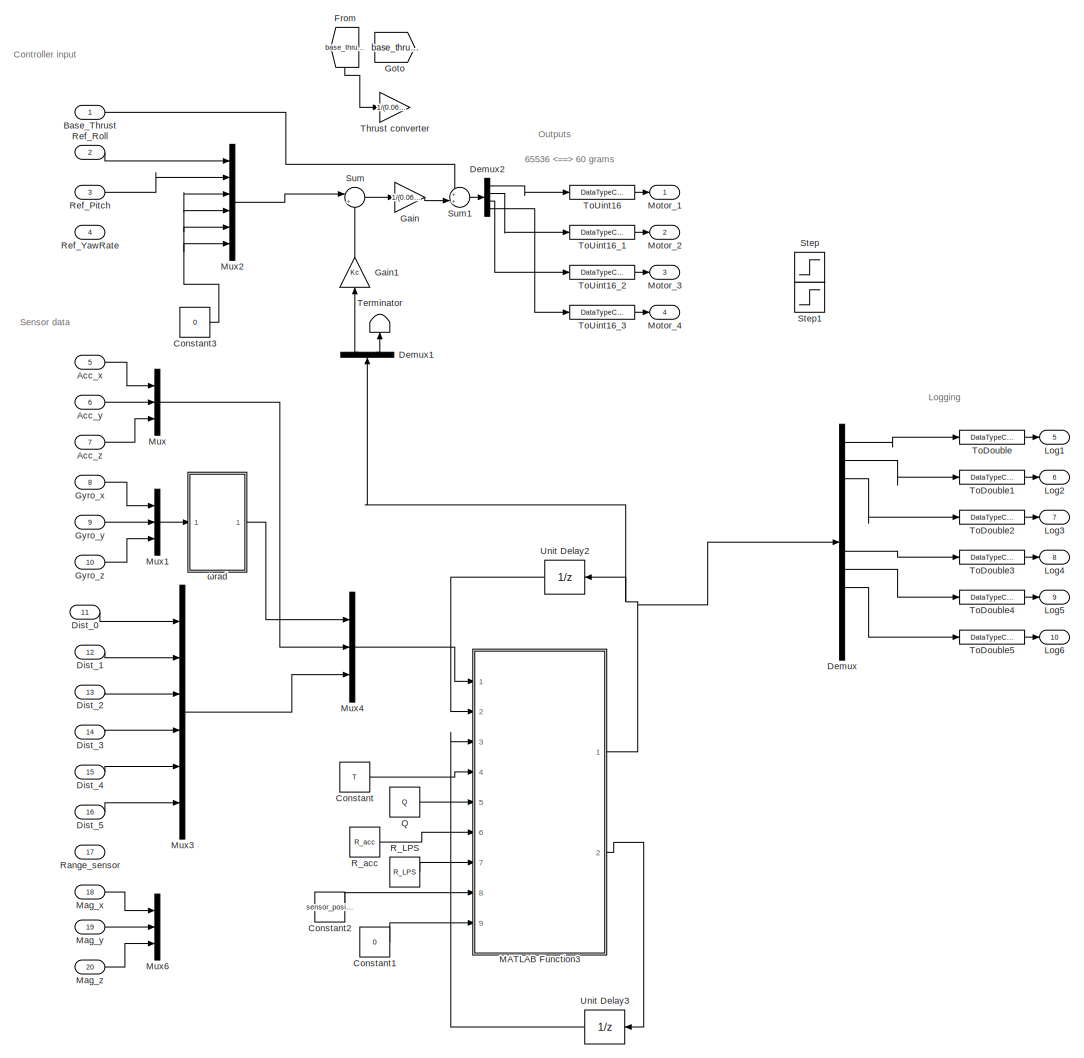
[diagram: root canvas - part 1/2, most of the canvas]
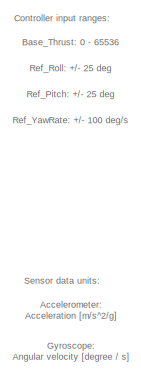
[diagram: root canvas - part 2/2, top left region]
MODEL slx_6607807f31e4
KIND model
CONFIG AbsTol = auto
CONFIG EnableMultiTasking = off
CONFIG FixedStep = 0.01
CONFIG MaxStep = auto
CONFIG MinStep = auto
CONFIG RelTol = 1e-3
CONFIG SampleTimeConstraint = Unconstrained
CONFIG Solver = FixedStepDiscrete
CONFIG SolverName = FixedStepDiscrete
CONFIG StartTime = 0.0
CONFIG StopTime = 25
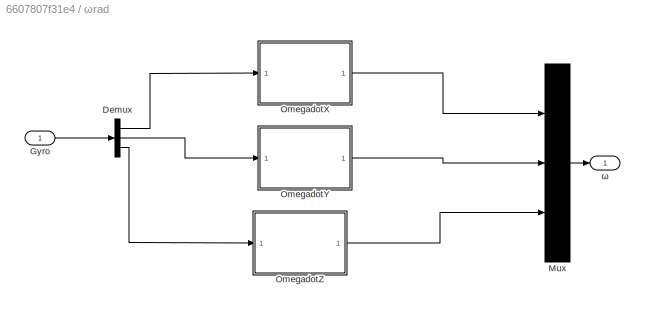
BLOCK [SubSystem]   ωrad 
  Ports = [1, 1]
  RequestExecContextInheritance = off
  Variant = off
BLOCK [Outport]   ωrad /  ω
  IconDisplay = Port number
BLOCK [Demux]   ωrad /Demux
  DisplayOption = bar
  Outputs = 3
  Ports = [1, 3]
BLOCK [Inport]   ωrad /Gyro
  IconDisplay = Port number
BLOCK [Mux]   ωrad /Mux
  DisplayOption = bar
  Inputs = 3
  Ports = [3, 1]
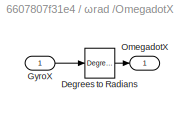
BLOCK [SubSystem]   ωrad /OmegadotX
  Ports = [1, 1]
  RequestExecContextInheritance = off
  Variant = off
BLOCK [Reference]   ωrad /OmegadotX/Degrees to Radians  REF=simulink_extras/Transformations/Degrees to
Radians
  Ports = [1, 1]
  SourceBlock = simulink_extras/Transformations/Degrees to\nRadians
  SourceProductBaseCode = SL
  SourceProductName = Simulink
  SourceType = DegreesToRadians
BLOCK [Inport]   ωrad /OmegadotX/GyroX 
  IconDisplay = Port number
BLOCK [Outport]   ωrad /OmegadotX/OmegadotX 
  IconDisplay = Port number
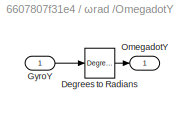
BLOCK [SubSystem]   ωrad /OmegadotY
  Ports = [1, 1]
  RequestExecContextInheritance = off
  Variant = off
BLOCK [Reference]   ωrad /OmegadotY/Degrees to Radians  REF=simulink_extras/Transformations/Degrees to
Radians
  Ports = [1, 1]
  SourceBlock = simulink_extras/Transformations/Degrees to\nRadians
  SourceProductBaseCode = SL
  SourceProductName = Simulink
  SourceType = DegreesToRadians
BLOCK [Inport]   ωrad /OmegadotY/GyroY 
  IconDisplay = Port number
BLOCK [Outport]   ωrad /OmegadotY/OmegadotY 
  IconDisplay = Port number
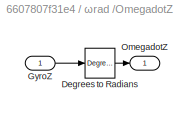
BLOCK [SubSystem]   ωrad /OmegadotZ
  Ports = [1, 1]
  RequestExecContextInheritance = off
  Variant = off
BLOCK [Reference]   ωrad /OmegadotZ/Degrees to Radians  REF=simulink_extras/Transformations/Degrees to
Radians
  Ports = [1, 1]
  SourceBlock = simulink_extras/Transformations/Degrees to\nRadians
  SourceProductBaseCode = SL
  SourceProductName = Simulink
  SourceType = DegreesToRadians
BLOCK [Inport]   ωrad /OmegadotZ/GyroZ 
  IconDisplay = Port number
BLOCK [Outport]   ωrad /OmegadotZ/OmegadotZ 
  IconDisplay = Port number
BLOCK [Inport] Acc_x
  IconDisplay = Port number
  OutDataTypeStr = double
  Port = 5
  PortDimensions = 1
  SignalType = real
  VarSizeSig = No
BLOCK [Inport] Acc_y
  IconDisplay = Port number
  OutDataTypeStr = double
  Port = 6
  PortDimensions = 1
  SignalType = real
  VarSizeSig = No
BLOCK [Inport] Acc_z
  IconDisplay = Port number
  OutDataTypeStr = double
  Port = 7
  PortDimensions = 1
  SignalType = real
  VarSizeSig = No
BLOCK [Inport] Base_Thrust
  IconDisplay = Port number
  OutDataTypeStr = double
  SignalType = real
BLOCK [Constant] Constant
  Value = T
BLOCK [Constant] Constant1
  Value = 0
BLOCK [Constant] Constant2
  Value = sensor_position
BLOCK [Constant] Constant3
  Value = 0
BLOCK [Demux] Demux
  DisplayOption = bar
  Outputs = 12
  Ports = [1, 12]
BLOCK [Demux] Demux1
  DisplayOption = bar
  Outputs = 2
  Ports = [1, 2]
BLOCK [Demux] Demux2
  DisplayOption = bar
  Ports = [1, 4]
BLOCK [Inport] Dist_0
  IconDisplay = Port number
  OutDataTypeStr = double
  Port = 11
  PortDimensions = 1
  SignalType = real
  VarSizeSig = No
BLOCK [Inport] Dist_1
  IconDisplay = Port number
  OutDataTypeStr = double
  Port = 12
  PortDimensions = 1
  SignalType = real
  VarSizeSig = No
BLOCK [Inport] Dist_2
  IconDisplay = Port number
  OutDataTypeStr = double
  Port = 13
  PortDimensions = 1
  SignalType = real
  VarSizeSig = No
BLOCK [Inport] Dist_3
  IconDisplay = Port number
  OutDataTypeStr = double
  Port = 14
  PortDimensions = 1
  SignalType = real
  VarSizeSig = No
BLOCK [Inport] Dist_4
  IconDisplay = Port number
  OutDataTypeStr = double
  Port = 15
  PortDimensions = 1
  SignalType = real
  VarSizeSig = No
BLOCK [Inport] Dist_5
  IconDisplay = Port number
  OutDataTypeStr = double
  Port = 16
  PortDimensions = 1
  SignalType = real
  VarSizeSig = No
BLOCK [From] From
  Commented = on
  GotoTag = base_thrust
BLOCK [Gain] Gain
  Commented = through
  Gain = 1/(0.06/4*g/65536)
  OutDataTypeStr = Inherit: Inherit via internal rule
  ParamDataTypeStr = Inherit: Inherit via internal rule
  SaturateOnIntegerOverflow = off
BLOCK [Gain] Gain1
  Commented = through
  Gain = Kc
  Multiplication = Matrix(K*u) (u vector)
  OutDataTypeStr = Inherit: Inherit via internal rule
  ParamDataTypeStr = Inherit: Inherit via internal rule
  SaturateOnIntegerOverflow = off
BLOCK [Goto] Goto
  Commented = on
  GotoTag = base_thrust
BLOCK [Inport] Gyro_x
  IconDisplay = Port number
  OutDataTypeStr = double
  Port = 8
  PortDimensions = 1
  SignalType = real
  VarSizeSig = No
BLOCK [Inport] Gyro_y
  IconDisplay = Port number
  OutDataTypeStr = double
  Port = 9
  PortDimensions = 1
  SignalType = real
  VarSizeSig = No
BLOCK [Inport] Gyro_z
  IconDisplay = Port number
  OutDataTypeStr = double
  Port = 10
  PortDimensions = 1
  SignalType = real
  VarSizeSig = No
BLOCK [Outport] Log1
  IconDisplay = Port number
  OutDataTypeStr = double
  Port = 5
BLOCK [Outport] Log2
  IconDisplay = Port number
  OutDataTypeStr = double
  Port = 6
BLOCK [Outport] Log3
  IconDisplay = Port number
  OutDataTypeStr = double
  Port = 7
BLOCK [Outport] Log4
  IconDisplay = Port number
  OutDataTypeStr = double
  Port = 8
BLOCK [Outport] Log5
  IconDisplay = Port number
  OutDataTypeStr = double
  Port = 9
BLOCK [Outport] Log6
  IconDisplay = Port number
  OutDataTypeStr = double
  Port = 10
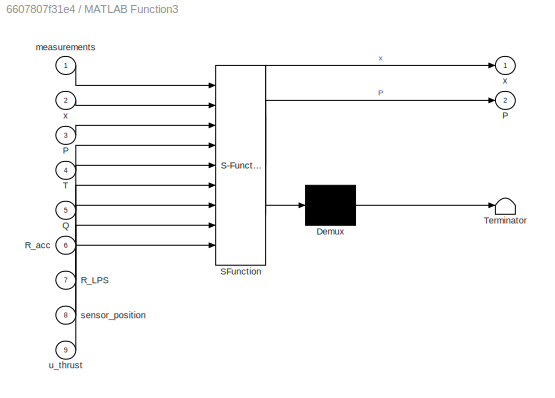
BLOCK [SubSystem] MATLAB Function3
  ErrorFcn = Stateflow.Translate.translate
  PermitHierarchicalResolution = ExplicitOnly
  Ports = [9, 2]
  RequestExecContextInheritance = off
  SFBlockType = MATLAB Function
  TreatAsAtomicUnit = on
  Variant = off
BLOCK [Demux] MATLAB Function3/ Demux 
  Outputs = 1
  Ports = [1, 1]
BLOCK [S-Function] MATLAB Function3/ SFunction 
  EnableBusSupport = on
  FunctionName = sf_sfun
  PortCounts = [9 3]
  Ports = [9, 3]
  SFcnIsStateOwnerBlock = off
  SFunctionDeploymentMode = off
  Tag = Stateflow S-Function crazyflie 4
BLOCK [Terminator] MATLAB Function3/ Terminator 
BLOCK [Outport] MATLAB Function3/P
  IconDisplay = Port number
  Port = 2
BLOCK [Inport] MATLAB Function3/P 
  IconDisplay = Port number
  Port = 3
BLOCK [Inport] MATLAB Function3/Q
  IconDisplay = Port number
  Port = 5
BLOCK [Inport] MATLAB Function3/R_LPS
  IconDisplay = Port number
  Port = 7
BLOCK [Inport] MATLAB Function3/R_acc
  IconDisplay = Port number
  Port = 6
BLOCK [Inport] MATLAB Function3/T
  IconDisplay = Port number
  Port = 4
BLOCK [Inport] MATLAB Function3/measurements
  IconDisplay = Port number
BLOCK [Inport] MATLAB Function3/sensor_position
  IconDisplay = Port number
  Port = 8
BLOCK [Inport] MATLAB Function3/u_thrust
  IconDisplay = Port number
  Port = 9
BLOCK [Outport] MATLAB Function3/x
  IconDisplay = Port number
BLOCK [Inport] MATLAB Function3/x 
  IconDisplay = Port number
  Port = 2
BLOCK [Inport] Mag_x
  IconDisplay = Port number
  OutDataTypeStr = double
  Port = 18
  PortDimensions = 1
  SignalType = real
  VarSizeSig = No
BLOCK [Inport] Mag_y
  IconDisplay = Port number
  OutDataTypeStr = double
  Port = 19
  PortDimensions = 1
  SignalType = real
  VarSizeSig = No
BLOCK [Inport] Mag_z
  IconDisplay = Port number
  OutDataTypeStr = double
  Port = 20
  PortDimensions = 1
  SignalType = real
  VarSizeSig = No
BLOCK [Outport] Motor_1
  IconDisplay = Port number
  LockScale = on
  OutDataTypeStr = uint16
BLOCK [Outport] Motor_2
  IconDisplay = Port number
  LockScale = on
  OutDataTypeStr = uint16
  Port = 2
BLOCK [Outport] Motor_3
  IconDisplay = Port number
  LockScale = on
  OutDataTypeStr = uint16
  Port = 3
BLOCK [Outport] Motor_4
  IconDisplay = Port number
  LockScale = on
  OutDataTypeStr = uint16
  Port = 4
BLOCK [Mux] Mux
  DisplayOption = bar
  Inputs = 3
  Ports = [3, 1]
BLOCK [Mux] Mux1
  DisplayOption = bar
  Inputs = 3
  Ports = [3, 1]
BLOCK [Mux] Mux2
  Commented = on
  DisplayOption = bar
  Inputs = 6
  Ports = [6, 1]
BLOCK [Mux] Mux3
  DisplayOption = bar
  Inputs = 6
  Ports = [6, 1]
BLOCK [Mux] Mux4
  DisplayOption = bar
  Inputs = 3
  Ports = [3, 1]
BLOCK [Mux] Mux6
  DisplayOption = bar
  Inputs = 3
  Ports = [3, 1]
BLOCK [Constant] Q
  Value = Q
BLOCK [Constant] R_LPS
  Value = R_LPS
BLOCK [Constant] R_acc
  Value = R_acc
BLOCK [Inport] Range_sensor
  IconDisplay = Port number
  OutDataTypeStr = double
  Port = 17
  PortDimensions = 1
  SignalType = real
  VarSizeSig = No
BLOCK [Inport] Ref_Pitch
  IconDisplay = Port number
  OutDataTypeStr = double
  Port = 3
BLOCK [Inport] Ref_Roll
  IconDisplay = Port number
  OutDataTypeStr = double
  Port = 2
BLOCK [Inport] Ref_YawRate
  IconDisplay = Port number
  OutDataTypeStr = double
  Port = 4
BLOCK [Step] Step
  After = 2000
  SampleTime = T
  Time = 2
BLOCK [Step] Step1
  After = 0
  SampleTime = T
BLOCK [Sum] Sum
  Commented = on
  IconShape = round
  InputSameDT = off
  Inputs = |+-
  OutDataTypeStr = Inherit: Inherit via internal rule
  Ports = [2, 1]
  SaturateOnIntegerOverflow = off
BLOCK [Sum] Sum1
  Commented = on
  IconShape = round
  InputSameDT = off
  Inputs = ++|
  OutDataTypeStr = Inherit: Inherit via internal rule
  Ports = [2, 1]
  SaturateOnIntegerOverflow = off
BLOCK [Terminator] Terminator
BLOCK [Gain] Thrust converter 
  Commented = through
  Gain = 1/(0.06/4*9.82/65536)
  OutDataTypeStr = Inherit: Inherit via internal rule
  ParamDataTypeStr = Inherit: Inherit via internal rule
  SaturateOnIntegerOverflow = off
BLOCK [DataTypeConversion] ToDouble
  OutDataTypeStr = double
  RndMeth = Floor
BLOCK [DataTypeConversion] ToDouble1
  OutDataTypeStr = double
  RndMeth = Floor
BLOCK [DataTypeConversion] ToDouble2
  OutDataTypeStr = double
  RndMeth = Floor
BLOCK [DataTypeConversion] ToDouble3
  OutDataTypeStr = double
  RndMeth = Floor
BLOCK [DataTypeConversion] ToDouble4
  OutDataTypeStr = double
  RndMeth = Floor
BLOCK [DataTypeConversion] ToDouble5
  OutDataTypeStr = double
  RndMeth = Floor
BLOCK [DataTypeConversion] ToUint16
  OutDataTypeStr = uint16
  RndMeth = Floor
BLOCK [DataTypeConversion] ToUint16_1
  OutDataTypeStr = uint16
  RndMeth = Floor
BLOCK [DataTypeConversion] ToUint16_2
  OutDataTypeStr = uint16
  RndMeth = Floor
BLOCK [DataTypeConversion] ToUint16_3
  OutDataTypeStr = uint16
  RndMeth = Floor
BLOCK [UnitDelay] Unit Delay2
  InitialCondition = zeros(12,1)
  InputProcessing = Elements as channels (sample based)
  SampleTime = -1
BLOCK [UnitDelay] Unit Delay3
  InitialCondition = eye(12)
  InputProcessing = Elements as channels (sample based)
  SampleTime = -1
ANNOTATION (root): 65536 60 grams
ANNOTATION (root): Accelerometer: Acceleration [m/s^2/g]
ANNOTATION (root): Base_Thrust: 0 - 65536
ANNOTATION (root): Controller input
ANNOTATION (root): Controller input ranges:
ANNOTATION (root): Gyroscope: Angular velocity [degree / s]
ANNOTATION (root): Logging
ANNOTATION (root): Outputs
ANNOTATION (root): Ref_Pitch: +/- 25 deg
ANNOTATION (root): Ref_Roll: +/- 25 deg
ANNOTATION (root): Ref_YawRate: +/- 100 deg/s
ANNOTATION (root): Sensor data
ANNOTATION (root): Sensor data units:
LINE   ωrad /Demux:1 ->   ωrad /OmegadotX:1
LINE   ωrad /Demux:2 ->   ωrad /OmegadotY:1
LINE   ωrad /Demux:3 ->   ωrad /OmegadotZ:1
LINE   ωrad /Gyro:1 ->   ωrad /Demux:1
LINE   ωrad /Mux:1 ->   ωrad /  ω:1
LINE   ωrad /OmegadotX/Degrees to Radians:1 ->   ωrad /OmegadotX/OmegadotX :1
LINE   ωrad /OmegadotX/GyroX :1 ->   ωrad /OmegadotX/Degrees to Radians:1
LINE   ωrad /OmegadotX:1 ->   ωrad /Mux:1
LINE   ωrad /OmegadotY/Degrees to Radians:1 ->   ωrad /OmegadotY/OmegadotY :1
LINE   ωrad /OmegadotY/GyroY :1 ->   ωrad /OmegadotY/Degrees to Radians:1
LINE   ωrad /OmegadotY:1 ->   ωrad /Mux:2
LINE   ωrad /OmegadotZ/Degrees to Radians:1 ->   ωrad /OmegadotZ/OmegadotZ :1
LINE   ωrad /OmegadotZ/GyroZ :1 ->   ωrad /OmegadotZ/Degrees to Radians:1
LINE   ωrad /OmegadotZ:1 ->   ωrad /Mux:3
LINE   ωrad :1 -> Mux4:1
LINE Acc_x:1 -> Mux:1
LINE Acc_y:1 -> Mux:2
LINE Acc_z:1 -> Mux:3
LINE Base_Thrust:1 -> Sum1:1
LINE Constant1:1 -> MATLAB Function3:9
LINE Constant2:1 -> MATLAB Function3:8
NET Constant3:1 -> Mux2:3, Mux2:4, Mux2:5, Mux2:6
LINE Constant:1 -> MATLAB Function3:4
LINE Demux1:1 -> Gain1:1
LINE Demux1:2 -> Terminator:1
LINE Demux2:1 -> ToUint16:1
LINE Demux2:2 -> ToUint16_1:1
LINE Demux2:3 -> ToUint16_2:1
LINE Demux2:4 -> ToUint16_3:1
LINE Demux:1 -> ToDouble:1
LINE Demux:2 -> ToDouble1:1
LINE Demux:3 -> ToDouble2:1
LINE Demux:7 -> ToDouble3:1
LINE Demux:8 -> ToDouble4:1
LINE Demux:9 -> ToDouble5:1
LINE Dist_0:1 -> Mux3:1
LINE Dist_1:1 -> Mux3:2
LINE Dist_2:1 -> Mux3:3
LINE Dist_3:1 -> Mux3:4
LINE Dist_4:1 -> Mux3:5
LINE Dist_5:1 -> Mux3:6
LINE From:1 -> Thrust converter :1
LINE Gain1:1 -> Sum:2
LINE Gain:1 -> Sum1:2
LINE Gyro_x:1 -> Mux1:1
LINE Gyro_y:1 -> Mux1:2
LINE Gyro_z:1 -> Mux1:3
NET MATLAB Function3:1 -> Demux1:1, Demux:1, Unit Delay2:1
LINE MATLAB Function3:2 -> Unit Delay3:1
LINE Mag_x:1 -> Mux6:1
LINE Mag_y:1 -> Mux6:2
LINE Mag_z:1 -> Mux6:3
LINE Mux1:1 ->   ωrad :1
LINE Mux2:1 -> Sum:1
LINE Mux3:1 -> Mux4:3
LINE Mux4:1 -> MATLAB Function3:1
LINE Mux:1 -> Mux4:2
LINE Q:1 -> MATLAB Function3:5
LINE R_LPS:1 -> MATLAB Function3:7
LINE R_acc:1 -> MATLAB Function3:6
LINE Ref_Pitch:1 -> Mux2:2
LINE Ref_Roll:1 -> Mux2:1
LINE Sum1:1 -> Demux2:1
LINE Sum:1 -> Gain:1
LINE ToDouble1:1 -> Log2:1
LINE ToDouble2:1 -> Log3:1
LINE ToDouble3:1 -> Log4:1
LINE ToDouble4:1 -> Log5:1
LINE ToDouble5:1 -> Log6:1
LINE ToDouble:1 -> Log1:1
LINE ToUint16:1 -> Motor_1:1
LINE ToUint16_1:1 -> Motor_2:1
LINE ToUint16_2:1 -> Motor_3:1
LINE ToUint16_3:1 -> Motor_4:1
LINE Unit Delay2:1 -> MATLAB Function3:2
LINE Unit Delay3:1 -> MATLAB Function3:3
note: NET lines group one-source signal fan-out (src -> all destinations, sorted); 1:1 wires keep LINE
CHART MATLAB Function3 states=1 transitions=1
  STATE_LABEL 'eML_blk_kernel()'
  STATE_LABEL 'SCRIPT:\n\nfunction [x, P] = ExtendedKalmanFilter(measurements,x,P,T,Q,R_acc,R_LPS,sensor_position,u_thrust)\n%NONLINEARKALMANFILTER Filters measurement sequence Y using a \n% non-linear Kalman filter. \n% TODO Implement Zranger\n%Input:\n%   Y                       [m x 1] Measurement sequence for times 1,...,N\n%   statePrior        [n x 1] Prior mean for time 0\n%   priorCovariance    [n x n] Prior cova...<+614ch>'
